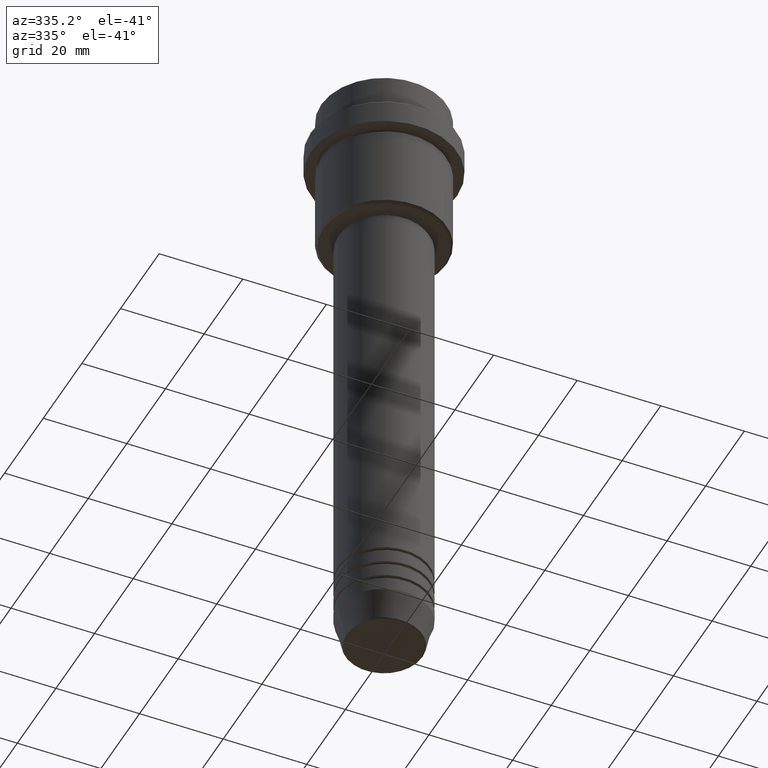
[diagram: clean part render]
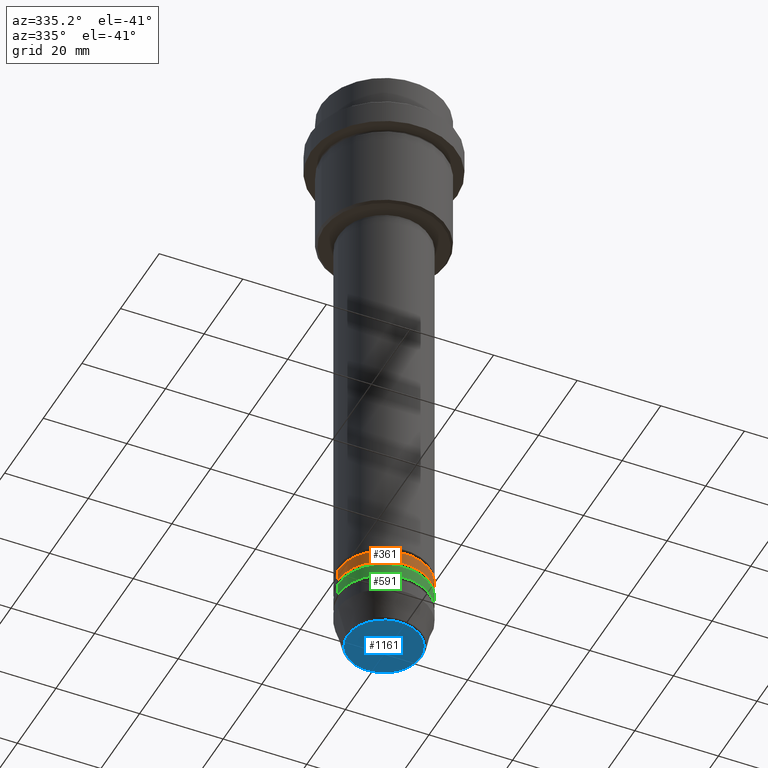
[diagram: same view with three faces highlighted in distinct colors, each labeled with its STEP entity id]
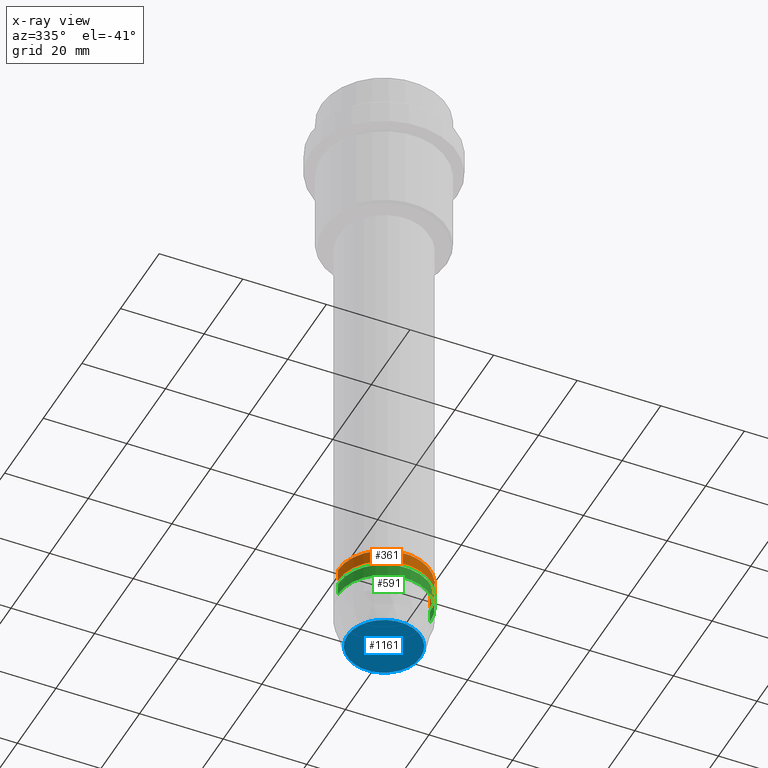
[diagram: x-ray of the same camera — body ghosted, the three highlighted faces saturated]
A machine part, auxiliary view with three faces highlighted in distinct colors.
The next image is the same camera in x-ray (body ghosted, the three faces saturated) — at least one of them is partly hidden behind the body in this view.
Their STEP definitions:

[orange] entity #361 — the highlighted cylindrical surface (partial cylindrical patch) has radius 11 mm, axis along (-0, -0, 1).
#19 = EDGE_CURVE ( 'NONE', #995, #849, #1151, .T. ) ;
#57 = CARTESIAN_POINT ( 'NONE',  ( -11.00000000000000000, 1.347111479062088405E-15, -135.9999999999998579 ) ) ;
#135 = EDGE_CURVE ( 'NONE', #654, #908, #1035, .T. ) ;
#232 = DIRECTION ( 'NONE',  ( 1.000000000000000000, 0.000000000000000000, 0.000000000000000000 ) ) ;
#247 = DIRECTION ( 'NONE',  ( -0.000000000000000000, -0.000000000000000000, 1.000000000000000000 ) ) ;
#272 = CARTESIAN_POINT ( 'NONE',  ( 0.000000000000000000, 0.000000000000000000, -135.9999999999998579 ) ) ;
#313 = ORIENTED_EDGE ( 'NONE', *, *, #1207, .T. ) ;
#361 = ADVANCED_FACE ( 'NONE', ( #575 ), #475, .T. ) ;
#406 = DIRECTION ( 'NONE',  ( -0.000000000000000000, -0.000000000000000000, 1.000000000000000000 ) ) ;
#411 = LINE ( 'NONE', #647, #1157 ) ;
#423 = DIRECTION ( 'NONE',  ( -0.000000000000000000, -0.000000000000000000, 1.000000000000000000 ) ) ;
#471 = DIRECTION ( 'NONE',  ( -0.000000000000000000, -0.000000000000000000, 1.000000000000000000 ) ) ;
#475 = CYLINDRICAL_SURFACE ( 'NONE', #653, 11.00000000000000000 ) ;
#499 = ORIENTED_EDGE ( 'NONE', *, *, #623, .F. ) ;
#546 = ORIENTED_EDGE ( 'NONE', *, *, #135, .F. ) ;
#554 = CARTESIAN_POINT ( 'NONE',  ( -11.00000000000000000, 1.347111479062088405E-15, -132.9999999999998579 ) ) ;
#575 = FACE_OUTER_BOUND ( 'NONE', #1125, .T. ) ;
#596 = CARTESIAN_POINT ( 'NONE',  ( 11.00000000000000000, 0.000000000000000000, 0.000000000000000000 ) ) ;
#623 = EDGE_CURVE ( 'NONE', #995, #654, #411, .T. ) ;
#647 = CARTESIAN_POINT ( 'NONE',  ( -11.00000000000000000, 1.347111479062088405E-15, 0.000000000000000000 ) ) ;
#653 = AXIS2_PLACEMENT_3D ( 'NONE', #1249, #471, #232 ) ;
#654 = VERTEX_POINT ( 'NONE', #554 ) ;
#687 = LINE ( 'NONE', #596, #1041 ) ;
#782 = CARTESIAN_POINT ( 'NONE',  ( 11.00000000000000000, 0.000000000000000000, -135.9999999999998579 ) ) ;
#788 = AXIS2_PLACEMENT_3D ( 'NONE', #272, #406, #1383 ) ;
#828 = CARTESIAN_POINT ( 'NONE',  ( 11.00000000000000000, 0.000000000000000000, -132.9999999999998579 ) ) ;
#849 = VERTEX_POINT ( 'NONE', #782 ) ;
#866 = DIRECTION ( 'NONE',  ( -0.000000000000000000, -0.000000000000000000, 1.000000000000000000 ) ) ;
#908 = VERTEX_POINT ( 'NONE', #828 ) ;
#995 = VERTEX_POINT ( 'NONE', #57 ) ;
#1035 = CIRCLE ( 'NONE', #1179, 11.00000000000000000 ) ;
#1041 = VECTOR ( 'NONE', #247, 1000.000000000000000 ) ;
#1084 = CARTESIAN_POINT ( 'NONE',  ( 0.000000000000000000, 0.000000000000000000, -132.9999999999998579 ) ) ;
#1125 = EDGE_LOOP ( 'NONE', ( #499, #1169, #313, #546 ) ) ;
#1151 = CIRCLE ( 'NONE', #788, 11.00000000000000000 ) ;
#1157 = VECTOR ( 'NONE', #866, 1000.000000000000000 ) ;
#1169 = ORIENTED_EDGE ( 'NONE', *, *, #19, .T. ) ;
#1179 = AXIS2_PLACEMENT_3D ( 'NONE', #1084, #423, #1193 ) ;
#1193 = DIRECTION ( 'NONE',  ( 1.000000000000000000, 0.000000000000000000, 0.000000000000000000 ) ) ;
#1207 = EDGE_CURVE ( 'NONE', #849, #908, #687, .T. ) ;
#1249 = CARTESIAN_POINT ( 'NONE',  ( 0.000000000000000000, 0.000000000000000000, 0.000000000000000000 ) ) ;
#1383 = DIRECTION ( 'NONE',  ( 1.000000000000000000, 0.000000000000000000, 0.000000000000000000 ) ) ;

[blue] entity #1161 — the highlighted planar face has unit normal (0, -0, 1).
#83 = PLANE ( 'NONE',  #609 ) ;
#113 = DIRECTION ( 'NONE',  ( 1.000000000000000000, 0.000000000000000000, 0.000000000000000000 ) ) ;
#118 = AXIS2_PLACEMENT_3D ( 'NONE', #564, #759, #113 ) ;
#161 = EDGE_CURVE ( 'NONE', #487, #789, #508, .T. ) ;
#189 = CARTESIAN_POINT ( 'NONE',  ( -8.740692158992656502, 1.099999016768739062E-15, -150.9999999999999716 ) ) ;
#317 = DIRECTION ( 'NONE',  ( 1.000000000000000000, 0.000000000000000000, 0.000000000000000000 ) ) ;
#351 = AXIS2_PLACEMENT_3D ( 'NONE', #704, #1033, #822 ) ;
#419 = CIRCLE ( 'NONE', #351, 8.740692158992656502 ) ;
#473 = ORIENTED_EDGE ( 'NONE', *, *, #161, .T. ) ;
#487 = VERTEX_POINT ( 'NONE', #189 ) ;
#508 = CIRCLE ( 'NONE', #118, 8.740692158992656502 ) ;
#522 = CARTESIAN_POINT ( 'NONE',  ( 0.000000000000000000, 0.000000000000000000, -150.9999999999999716 ) ) ;
#564 = CARTESIAN_POINT ( 'NONE',  ( 0.000000000000000000, 0.000000000000000000, -150.9999999999999716 ) ) ;
#587 = ORIENTED_EDGE ( 'NONE', *, *, #896, .T. ) ;
#609 = AXIS2_PLACEMENT_3D ( 'NONE', #522, #959, #317 ) ;
#704 = CARTESIAN_POINT ( 'NONE',  ( 0.000000000000000000, 0.000000000000000000, -150.9999999999999716 ) ) ;
#759 = DIRECTION ( 'NONE',  ( 0.000000000000000000, 0.000000000000000000, -1.000000000000000000 ) ) ;
#775 = EDGE_LOOP ( 'NONE', ( #587, #473 ) ) ;
#789 = VERTEX_POINT ( 'NONE', #902 ) ;
#822 = DIRECTION ( 'NONE',  ( 1.000000000000000000, 0.000000000000000000, 0.000000000000000000 ) ) ;
#896 = EDGE_CURVE ( 'NONE', #789, #487, #419, .T. ) ;
#902 = CARTESIAN_POINT ( 'NONE',  ( 8.740692158992656502, 0.000000000000000000, -150.9999999999999716 ) ) ;
#959 = DIRECTION ( 'NONE',  ( 0.000000000000000000, -0.000000000000000000, 1.000000000000000000 ) ) ;
#1033 = DIRECTION ( 'NONE',  ( 0.000000000000000000, 0.000000000000000000, -1.000000000000000000 ) ) ;
#1069 = FACE_OUTER_BOUND ( 'NONE', #775, .T. ) ;
#1161 = ADVANCED_FACE ( 'NONE', ( #1069 ), #83, .F. ) ;

[green] entity #591 — the highlighted cylindrical surface (partial cylindrical patch) has radius 11 mm, axis along (-0, -0, 1).
#155 = DIRECTION ( 'NONE',  ( 1.000000000000000000, 0.000000000000000000, 0.000000000000000000 ) ) ;
#173 = DIRECTION ( 'NONE',  ( -0.000000000000000000, -0.000000000000000000, 1.000000000000000000 ) ) ;
#190 = AXIS2_PLACEMENT_3D ( 'NONE', #1370, #173, #287 ) ;
#195 = ORIENTED_EDGE ( 'NONE', *, *, #735, .T. ) ;
#226 = EDGE_CURVE ( 'NONE', #256, #1158, #772, .T. ) ;
#231 = LINE ( 'NONE', #673, #563 ) ;
#256 = VERTEX_POINT ( 'NONE', #686 ) ;
#287 = DIRECTION ( 'NONE',  ( 1.000000000000000000, 0.000000000000000000, 0.000000000000000000 ) ) ;
#288 = VERTEX_POINT ( 'NONE', #1333 ) ;
#300 = VECTOR ( 'NONE', #1212, 1000.000000000000000 ) ;
#421 = EDGE_CURVE ( 'NONE', #1158, #288, #605, .T. ) ;
#498 = CARTESIAN_POINT ( 'NONE',  ( 0.000000000000000000, 0.000000000000000000, -136.9999999999998579 ) ) ;
#524 = CARTESIAN_POINT ( 'NONE',  ( 0.000000000000000000, 0.000000000000000000, 0.000000000000000000 ) ) ;
#563 = VECTOR ( 'NONE', #1115, 1000.000000000000000 ) ;
#573 = VERTEX_POINT ( 'NONE', #641 ) ;
#591 = ADVANCED_FACE ( 'NONE', ( #1321 ), #981, .T. ) ;
#605 = CIRCLE ( 'NONE', #714, 11.00000000000000000 ) ;
#630 = CARTESIAN_POINT ( 'NONE',  ( -11.00000000000000000, 1.347111479062088405E-15, -136.9999999999998579 ) ) ;
#639 = ORIENTED_EDGE ( 'NONE', *, *, #226, .F. ) ;
#641 = CARTESIAN_POINT ( 'NONE',  ( 11.00000000000000000, 0.000000000000000000, -139.9999999999998579 ) ) ;
#662 = DIRECTION ( 'NONE',  ( -0.000000000000000000, -0.000000000000000000, 1.000000000000000000 ) ) ;
#673 = CARTESIAN_POINT ( 'NONE',  ( 11.00000000000000000, 0.000000000000000000, 0.000000000000000000 ) ) ;
#686 = CARTESIAN_POINT ( 'NONE',  ( -11.00000000000000000, 1.347111479062088405E-15, -139.9999999999998579 ) ) ;
#714 = AXIS2_PLACEMENT_3D ( 'NONE', #498, #1281, #155 ) ;
#735 = EDGE_CURVE ( 'NONE', #573, #288, #231, .T. ) ;
#772 = LINE ( 'NONE', #1298, #300 ) ;
#813 = CIRCLE ( 'NONE', #190, 11.00000000000000000 ) ;
#850 = ORIENTED_EDGE ( 'NONE', *, *, #421, .F. ) ;
#855 = AXIS2_PLACEMENT_3D ( 'NONE', #524, #662, #1100 ) ;
#912 = ORIENTED_EDGE ( 'NONE', *, *, #943, .T. ) ;
#943 = EDGE_CURVE ( 'NONE', #256, #573, #813, .T. ) ;
#981 = CYLINDRICAL_SURFACE ( 'NONE', #855, 11.00000000000000000 ) ;
#1100 = DIRECTION ( 'NONE',  ( 1.000000000000000000, 0.000000000000000000, 0.000000000000000000 ) ) ;
#1115 = DIRECTION ( 'NONE',  ( -0.000000000000000000, -0.000000000000000000, 1.000000000000000000 ) ) ;
#1158 = VERTEX_POINT ( 'NONE', #630 ) ;
#1212 = DIRECTION ( 'NONE',  ( -0.000000000000000000, -0.000000000000000000, 1.000000000000000000 ) ) ;
#1281 = DIRECTION ( 'NONE',  ( -0.000000000000000000, -0.000000000000000000, 1.000000000000000000 ) ) ;
#1298 = CARTESIAN_POINT ( 'NONE',  ( -11.00000000000000000, 1.347111479062088405E-15, 0.000000000000000000 ) ) ;
#1321 = FACE_OUTER_BOUND ( 'NONE', #1371, .T. ) ;
#1333 = CARTESIAN_POINT ( 'NONE',  ( 11.00000000000000000, 0.000000000000000000, -136.9999999999998579 ) ) ;
#1370 = CARTESIAN_POINT ( 'NONE',  ( 0.000000000000000000, 0.000000000000000000, -139.9999999999998579 ) ) ;
#1371 = EDGE_LOOP ( 'NONE', ( #639, #912, #195, #850 ) ) ;